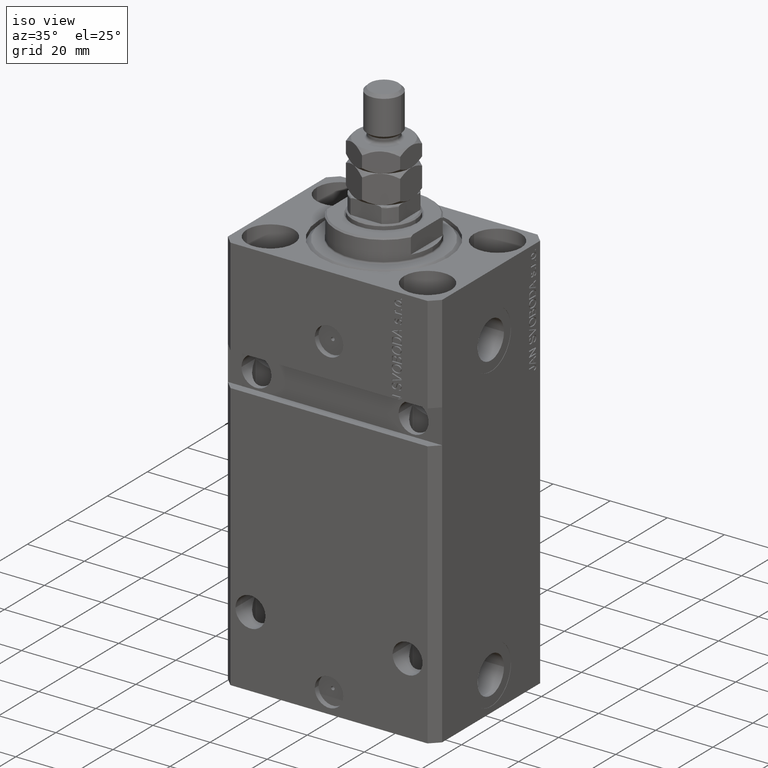
[diagram: clean part render]
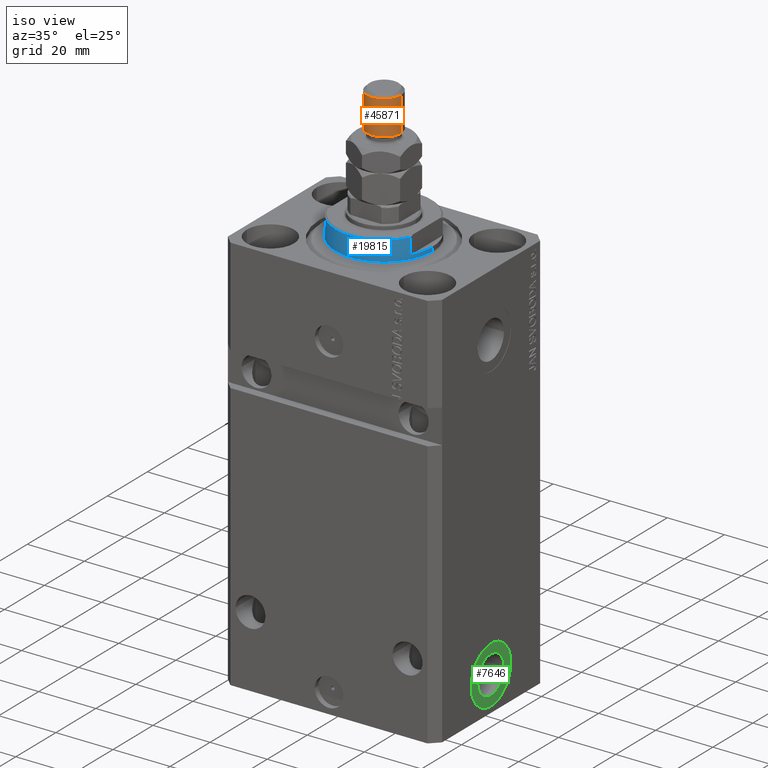
[diagram: same view with three faces highlighted in distinct colors, each labeled with its STEP entity id]
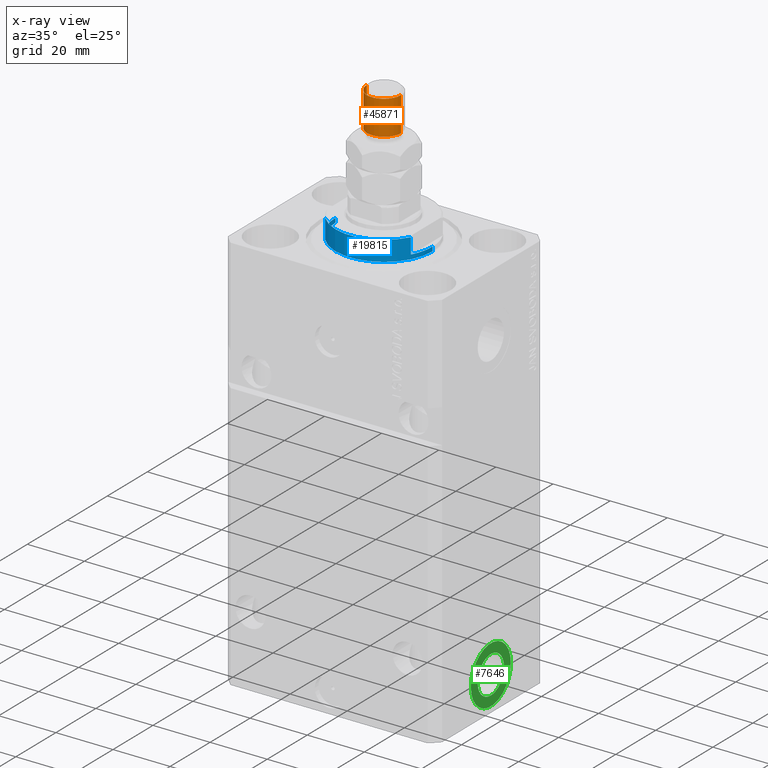
[diagram: x-ray of the same camera — body ghosted, the three highlighted faces saturated]
A machine part, iso view with three faces highlighted in distinct colors.
The next image is the same camera in x-ray (body ghosted, the three faces saturated) — at least one of them is partly hidden behind the body in this view.
Their STEP definitions:

[orange] entity #45871 — the highlighted cylindrical surface (edge-blend (fillet) strip) has radius 6 mm, axis along (-0, -0, -1).
#167 = LINE ( 'NONE', #25175, #2656 ) ;
#870 = AXIS2_PLACEMENT_3D ( 'NONE', #9820, #31557, #17756 ) ;
#1553 = DIRECTION ( 'NONE',  ( 0.000000000000000000, 0.000000000000000000, -1.000000000000000000 ) ) ;
#1588 = CARTESIAN_POINT ( 'NONE',  ( 6.000000000000000888, 7.347880794884120722E-16, 33.00000000000000000 ) ) ;
#2026 = EDGE_CURVE ( 'NONE', #27707, #12051, #31500, .T. ) ;
#2656 = VECTOR ( 'NONE', #32420, 1000.000000000000000 ) ;
#5434 = DIRECTION ( 'NONE',  ( -0.000000000000000000, -0.000000000000000000, -1.000000000000000000 ) ) ;
#8719 = EDGE_LOOP ( 'NONE', ( #38730, #33545, #16547, #36748 ) ) ;
#9820 = CARTESIAN_POINT ( 'NONE',  ( 0.000000000000000000, 0.000000000000000000, 20.00000000000000711 ) ) ;
#11784 = EDGE_CURVE ( 'NONE', #37159, #12051, #37565, .T. ) ;
#11982 = CYLINDRICAL_SURFACE ( 'NONE', #31238, 6.000000000000000888 ) ;
#12051 = VERTEX_POINT ( 'NONE', #44539 ) ;
#13024 = CARTESIAN_POINT ( 'NONE',  ( -6.000000000000000888, 0.000000000000000000, 20.00000000000000711 ) ) ;
#15250 = VECTOR ( 'NONE', #30800, 1000.000000000000000 ) ;
#15820 = DIRECTION ( 'NONE',  ( 1.000000000000000000, 0.000000000000000000, 0.000000000000000000 ) ) ;
#15957 = DIRECTION ( 'NONE',  ( -1.000000000000000000, 0.000000000000000000, 0.000000000000000000 ) ) ;
#16547 = ORIENTED_EDGE ( 'NONE', *, *, #29565, .T. ) ;
#17756 = DIRECTION ( 'NONE',  ( 1.000000000000000000, 0.000000000000000000, 0.000000000000000000 ) ) ;
#24192 = CARTESIAN_POINT ( 'NONE',  ( -6.000000000000000888, 0.000000000000000000, 32.00000000000000000 ) ) ;
#25175 = CARTESIAN_POINT ( 'NONE',  ( -6.000000000000000888, 0.000000000000000000, 33.00000000000000000 ) ) ;
#26643 = AXIS2_PLACEMENT_3D ( 'NONE', #29841, #1553, #15820 ) ;
#27707 = VERTEX_POINT ( 'NONE', #13024 ) ;
#28943 = VERTEX_POINT ( 'NONE', #24192 ) ;
#29565 = EDGE_CURVE ( 'NONE', #28943, #27707, #167, .T. ) ;
#29841 = CARTESIAN_POINT ( 'NONE',  ( 0.000000000000000000, 0.000000000000000000, 32.00000000000000000 ) ) ;
#30211 = CARTESIAN_POINT ( 'NONE',  ( 0.000000000000000000, 0.000000000000000000, 33.00000000000000000 ) ) ;
#30800 = DIRECTION ( 'NONE',  ( -0.000000000000000000, -0.000000000000000000, -1.000000000000000000 ) ) ;
#31238 = AXIS2_PLACEMENT_3D ( 'NONE', #30211, #5434, #15957 ) ;
#31305 = CARTESIAN_POINT ( 'NONE',  ( 6.000000000000000888, 7.347880794884120722E-16, 32.00000000000000000 ) ) ;
#31500 = CIRCLE ( 'NONE', #870, 6.000000000000000888 ) ;
#31557 = DIRECTION ( 'NONE',  ( -0.000000000000000000, -0.000000000000000000, 1.000000000000000000 ) ) ;
#32420 = DIRECTION ( 'NONE',  ( -0.000000000000000000, -0.000000000000000000, -1.000000000000000000 ) ) ;
#33545 = ORIENTED_EDGE ( 'NONE', *, *, #35527, .T. ) ;
#35527 = EDGE_CURVE ( 'NONE', #37159, #28943, #38572, .T. ) ;
#36748 = ORIENTED_EDGE ( 'NONE', *, *, #2026, .T. ) ;
#37159 = VERTEX_POINT ( 'NONE', #31305 ) ;
#37434 = FACE_OUTER_BOUND ( 'NONE', #8719, .T. ) ;
#37565 = LINE ( 'NONE', #1588, #15250 ) ;
#38572 = CIRCLE ( 'NONE', #26643, 6.000000000000000888 ) ;
#38730 = ORIENTED_EDGE ( 'NONE', *, *, #11784, .F. ) ;
#44539 = CARTESIAN_POINT ( 'NONE',  ( 6.000000000000000888, 7.347880794884120722E-16, 20.00000000000000711 ) ) ;
#45871 = ADVANCED_FACE ( 'NONE', ( #37434 ), #11982, .T. ) ;

[blue] entity #19815 — the highlighted cylindrical surface (partial cylindrical patch) has radius 17 mm, axis along (0, 0, -1).
#440 = CARTESIAN_POINT ( 'NONE',  ( 0.000000000000000000, 0.000000000000000000, -7.500000000000007105 ) ) ;
#763 = CIRCLE ( 'NONE', #41807, 17.00000000000000000 ) ;
#1017 = EDGE_LOOP ( 'NONE', ( #10404, #26890, #30568, #36613, #36658, #22628, #43661, #44304 ) ) ;
#1291 = DIRECTION ( 'NONE',  ( -1.000000000000000000, 0.000000000000000000, 0.000000000000000000 ) ) ;
#1805 = CARTESIAN_POINT ( 'NONE',  ( 0.000000000000000000, 0.000000000000000000, -2.000000000000000000 ) ) ;
#2051 = VERTEX_POINT ( 'NONE', #10515 ) ;
#2415 = CARTESIAN_POINT ( 'NONE',  ( -15.00000000000000000, -8.000000000000001776, -8.000000000000000000 ) ) ;
#2831 = AXIS2_PLACEMENT_3D ( 'NONE', #35886, #43595, #1291 ) ;
#3140 = EDGE_CURVE ( 'NONE', #27819, #41536, #20540, .T. ) ;
#3165 = CIRCLE ( 'NONE', #29288, 17.00000000000000000 ) ;
#5931 = EDGE_CURVE ( 'NONE', #23707, #37456, #41440, .T. ) ;
#7190 = DIRECTION ( 'NONE',  ( 1.000000000000000000, 0.000000000000000000, 0.000000000000000000 ) ) ;
#7771 = LINE ( 'NONE', #32782, #44433 ) ;
#7861 = CARTESIAN_POINT ( 'NONE',  ( 15.00000000000000000, -8.000000000000001776, -7.500000000000007105 ) ) ;
#8511 = EDGE_CURVE ( 'NONE', #23707, #9174, #43500, .T. ) ;
#9174 = VERTEX_POINT ( 'NONE', #44815 ) ;
#10404 = ORIENTED_EDGE ( 'NONE', *, *, #24345, .F. ) ;
#10515 = CARTESIAN_POINT ( 'NONE',  ( -17.00000000000000000, 2.081899558550500280E-15, -0.5000000000000004441 ) ) ;
#10674 = CARTESIAN_POINT ( 'NONE',  ( 17.00000000000000000, 0.000000000000000000, -2.000000000000000000 ) ) ;
#11342 = AXIS2_PLACEMENT_3D ( 'NONE', #30551, #26594, #40828 ) ;
#13637 = EDGE_CURVE ( 'NONE', #14197, #20846, #7771, .T. ) ;
#14197 = VERTEX_POINT ( 'NONE', #38458 ) ;
#14431 = CARTESIAN_POINT ( 'NONE',  ( 0.000000000000000000, 0.000000000000000000, -0.5000000000000004441 ) ) ;
#18238 = LINE ( 'NONE', #24559, #24886 ) ;
#19815 = ADVANCED_FACE ( 'NONE', ( #44798 ), #37553, .T. ) ;
#20540 = LINE ( 'NONE', #34780, #38220 ) ;
#20846 = VERTEX_POINT ( 'NONE', #7861 ) ;
#20988 = DIRECTION ( 'NONE',  ( -0.000000000000000000, -0.000000000000000000, -1.000000000000000000 ) ) ;
#22007 = EDGE_CURVE ( 'NONE', #41536, #2051, #3165, .T. ) ;
#22628 = ORIENTED_EDGE ( 'NONE', *, *, #45548, .F. ) ;
#22993 = CIRCLE ( 'NONE', #2831, 17.00000000000000000 ) ;
#23343 = AXIS2_PLACEMENT_3D ( 'NONE', #1805, #44580, #44797 ) ;
#23707 = VERTEX_POINT ( 'NONE', #40628 ) ;
#24345 = EDGE_CURVE ( 'NONE', #9174, #2051, #18238, .T. ) ;
#24559 = CARTESIAN_POINT ( 'NONE',  ( -17.00000000000000000, 2.081899558550500280E-15, -8.000000000000000000 ) ) ;
#24886 = VECTOR ( 'NONE', #32727, 1000.000000000000000 ) ;
#26594 = DIRECTION ( 'NONE',  ( -0.000000000000000000, -0.000000000000000000, 1.000000000000000000 ) ) ;
#26890 = ORIENTED_EDGE ( 'NONE', *, *, #8511, .F. ) ;
#27048 = CARTESIAN_POINT ( 'NONE',  ( -15.00000000000000000, -8.000000000000001776, -7.500000000000007105 ) ) ;
#27819 = VERTEX_POINT ( 'NONE', #10674 ) ;
#28609 = CARTESIAN_POINT ( 'NONE',  ( 17.00000000000000000, 0.000000000000000000, -0.5000000000000004441 ) ) ;
#29288 = AXIS2_PLACEMENT_3D ( 'NONE', #14431, #20988, #7190 ) ;
#30551 = CARTESIAN_POINT ( 'NONE',  ( 0.000000000000000000, 0.000000000000000000, -8.000000000000000000 ) ) ;
#30568 = ORIENTED_EDGE ( 'NONE', *, *, #5931, .T. ) ;
#32727 = DIRECTION ( 'NONE',  ( -0.000000000000000000, -0.000000000000000000, 1.000000000000000000 ) ) ;
#32782 = CARTESIAN_POINT ( 'NONE',  ( 15.00000000000000000, -8.000000000000001776, -8.000000000000000000 ) ) ;
#33135 = DIRECTION ( 'NONE',  ( -1.000000000000000000, 0.000000000000000000, 0.000000000000000000 ) ) ;
#34780 = CARTESIAN_POINT ( 'NONE',  ( 17.00000000000000000, 0.000000000000000000, -8.000000000000000000 ) ) ;
#35350 = DIRECTION ( 'NONE',  ( 0.000000000000000000, 0.000000000000000000, -1.000000000000000000 ) ) ;
#35886 = CARTESIAN_POINT ( 'NONE',  ( 0.000000000000000000, 0.000000000000000000, -2.000000000000000000 ) ) ;
#36183 = DIRECTION ( 'NONE',  ( 0.000000000000000000, 0.000000000000000000, 1.000000000000000000 ) ) ;
#36613 = ORIENTED_EDGE ( 'NONE', *, *, #43458, .T. ) ;
#36658 = ORIENTED_EDGE ( 'NONE', *, *, #13637, .F. ) ;
#37456 = VERTEX_POINT ( 'NONE', #27048 ) ;
#37553 = CYLINDRICAL_SURFACE ( 'NONE', #11342, 17.00000000000000000 ) ;
#38220 = VECTOR ( 'NONE', #42018, 1000.000000000000000 ) ;
#38458 = CARTESIAN_POINT ( 'NONE',  ( 14.99999999999999645, -8.000000000000003553, -2.000000000000000000 ) ) ;
#39724 = VECTOR ( 'NONE', #44952, 1000.000000000000000 ) ;
#40628 = CARTESIAN_POINT ( 'NONE',  ( -14.99999999999999645, -8.000000000000003553, -2.000000000000000000 ) ) ;
#40828 = DIRECTION ( 'NONE',  ( 1.000000000000000000, 0.000000000000000000, 0.000000000000000000 ) ) ;
#41440 = LINE ( 'NONE', #2415, #39724 ) ;
#41536 = VERTEX_POINT ( 'NONE', #28609 ) ;
#41807 = AXIS2_PLACEMENT_3D ( 'NONE', #440, #36183, #33135 ) ;
#42018 = DIRECTION ( 'NONE',  ( -0.000000000000000000, -0.000000000000000000, 1.000000000000000000 ) ) ;
#43458 = EDGE_CURVE ( 'NONE', #37456, #20846, #763, .T. ) ;
#43500 = CIRCLE ( 'NONE', #23343, 17.00000000000000000 ) ;
#43595 = DIRECTION ( 'NONE',  ( 0.000000000000000000, 0.000000000000000000, -1.000000000000000000 ) ) ;
#43661 = ORIENTED_EDGE ( 'NONE', *, *, #3140, .T. ) ;
#44304 = ORIENTED_EDGE ( 'NONE', *, *, #22007, .T. ) ;
#44433 = VECTOR ( 'NONE', #35350, 1000.000000000000000 ) ;
#44580 = DIRECTION ( 'NONE',  ( 0.000000000000000000, 0.000000000000000000, -1.000000000000000000 ) ) ;
#44797 = DIRECTION ( 'NONE',  ( -1.000000000000000000, 0.000000000000000000, 0.000000000000000000 ) ) ;
#44798 = FACE_OUTER_BOUND ( 'NONE', #1017, .T. ) ;
#44815 = CARTESIAN_POINT ( 'NONE',  ( -17.00000000000000000, 2.081899558550500280E-15, -2.000000000000000000 ) ) ;
#44952 = DIRECTION ( 'NONE',  ( 0.000000000000000000, 0.000000000000000000, -1.000000000000000000 ) ) ;
#45548 = EDGE_CURVE ( 'NONE', #27819, #14197, #22993, .T. ) ;

[green] entity #7646 — the highlighted planar face has unit normal (1, -0, 0).
#159 = CIRCLE ( 'NONE', #15841, 10.00000000000000888 ) ;
#2031 = CARTESIAN_POINT ( 'NONE',  ( 37.40000000000033964, 6.579999999999583515, -128.0000000000000000 ) ) ;
#2462 = EDGE_LOOP ( 'NONE', ( #11540, #13131 ) ) ;
#3103 = EDGE_CURVE ( 'NONE', #5947, #37389, #12104, .T. ) ;
#3700 = FACE_BOUND ( 'NONE', #2462, .T. ) ;
#5920 = CIRCLE ( 'NONE', #23063, 10.00000000000000888 ) ;
#5947 = VERTEX_POINT ( 'NONE', #23225 ) ;
#6903 = AXIS2_PLACEMENT_3D ( 'NONE', #31985, #10260, #39451 ) ;
#7646 = ADVANCED_FACE ( 'NONE', ( #3700, #38527 ), #25206, .T. ) ;
#8176 = CARTESIAN_POINT ( 'NONE',  ( 37.40000000000011937, -10.00000000000041211, -128.0000000000000000 ) ) ;
#8427 = EDGE_LOOP ( 'NONE', ( #9752, #13957 ) ) ;
#9752 = ORIENTED_EDGE ( 'NONE', *, *, #21088, .T. ) ;
#10260 = DIRECTION ( 'NONE',  ( 1.000000000000000000, -1.334402673828349134E-14, 0.000000000000000000 ) ) ;
#10910 = EDGE_CURVE ( 'NONE', #37389, #5947, #21181, .T. ) ;
#11540 = ORIENTED_EDGE ( 'NONE', *, *, #10910, .F. ) ;
#12104 = CIRCLE ( 'NONE', #12831, 6.579999999999985860 ) ;
#12692 = DIRECTION ( 'NONE',  ( 1.000000000000000000, -1.334402673828349134E-14, 0.000000000000000000 ) ) ;
#12831 = AXIS2_PLACEMENT_3D ( 'NONE', #45062, #38042, #44825 ) ;
#13131 = ORIENTED_EDGE ( 'NONE', *, *, #3103, .F. ) ;
#13957 = ORIENTED_EDGE ( 'NONE', *, *, #41217, .T. ) ;
#15841 = AXIS2_PLACEMENT_3D ( 'NONE', #28616, #12692, #33277 ) ;
#16769 = VERTEX_POINT ( 'NONE', #8176 ) ;
#17801 = DIRECTION ( 'NONE',  ( 1.000000000000000000, -1.334402673828349134E-14, 0.000000000000000000 ) ) ;
#19675 = DIRECTION ( 'NONE',  ( 1.370906090437601279E-14, 1.000000000000000000, 0.000000000000000000 ) ) ;
#20135 = DIRECTION ( 'NONE',  ( 1.000000000000000000, -1.334402673828349134E-14, 0.000000000000000000 ) ) ;
#21088 = EDGE_CURVE ( 'NONE', #37234, #16769, #159, .T. ) ;
#21181 = CIRCLE ( 'NONE', #24912, 6.579999999999985860 ) ;
#22170 = CARTESIAN_POINT ( 'NONE',  ( 37.40000000000038227, 9.999999999999605649, -128.0000000000000000 ) ) ;
#23063 = AXIS2_PLACEMENT_3D ( 'NONE', #24359, #17801, #38819 ) ;
#23225 = CARTESIAN_POINT ( 'NONE',  ( 37.40000000000016200, -6.580000000000387317, -128.0000000000000000 ) ) ;
#24359 = CARTESIAN_POINT ( 'NONE',  ( 37.40000000000025437, -4.022543243901666471E-13, -128.0000000000000000 ) ) ;
#24912 = AXIS2_PLACEMENT_3D ( 'NONE', #41847, #20135, #19675 ) ;
#25206 = PLANE ( 'NONE',  #6903 ) ;
#28616 = CARTESIAN_POINT ( 'NONE',  ( 37.40000000000025437, -4.022543243901666471E-13, -128.0000000000000000 ) ) ;
#31985 = CARTESIAN_POINT ( 'NONE',  ( 37.40000000000025437, -4.022543243901666471E-13, -128.0000000000000000 ) ) ;
#33277 = DIRECTION ( 'NONE',  ( 1.318389841742372287E-14, 1.000000000000000000, 0.000000000000000000 ) ) ;
#37234 = VERTEX_POINT ( 'NONE', #22170 ) ;
#37389 = VERTEX_POINT ( 'NONE', #2031 ) ;
#38042 = DIRECTION ( 'NONE',  ( 1.000000000000000000, -1.334402673828349134E-14, 0.000000000000000000 ) ) ;
#38527 = FACE_OUTER_BOUND ( 'NONE', #8427, .T. ) ;
#38819 = DIRECTION ( 'NONE',  ( 1.318389841742372287E-14, 1.000000000000000000, 0.000000000000000000 ) ) ;
#39451 = DIRECTION ( 'NONE',  ( 1.334402673828349134E-14, 1.000000000000000000, 0.000000000000000000 ) ) ;
#41217 = EDGE_CURVE ( 'NONE', #16769, #37234, #5920, .T. ) ;
#41847 = CARTESIAN_POINT ( 'NONE',  ( 37.40000000000025437, -4.022543243901666471E-13, -128.0000000000000000 ) ) ;
#44825 = DIRECTION ( 'NONE',  ( 1.370906090437601279E-14, 1.000000000000000000, 0.000000000000000000 ) ) ;
#45062 = CARTESIAN_POINT ( 'NONE',  ( 37.40000000000025437, -4.022543243901666471E-13, -128.0000000000000000 ) ) ;